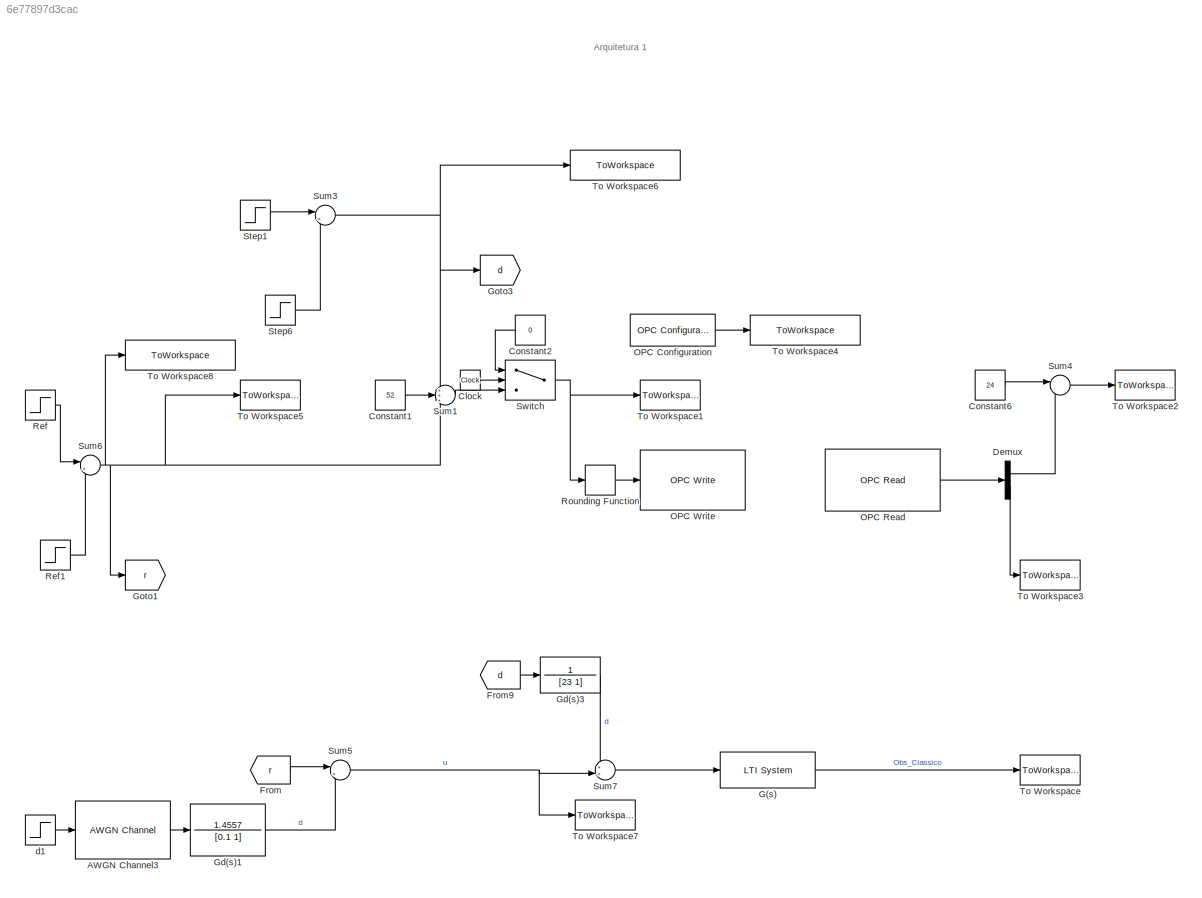
MODEL slx_6e77897d3cac
KIND model
BLOCK [Reference] AWGN Channel3  REF=commchan3/AWGN
Channel
  EbNodB = 10
  EsNodB = 10
  InputProcessing = Columns as channels (frame based)
  Ports = [1, 1]
  Ps = 1
  SNRdB = 10
  SourceBlock = commchan3/AWGN\nChannel
  SourceType = AWGN Channel
  Tsym = 1
  UserDataPersistent = on
  bitsPerSym = 1
  noiseMode = Variance from mask
  seed = 67
  variance = var_ruido
BLOCK [Clock] Clock
BLOCK [Constant] Constant1
  Value = 52
BLOCK [Constant] Constant2
  Value = 0
BLOCK [Constant] Constant6
  Value = 24
BLOCK [Demux] Demux
  DisplayOption = bar
  Outputs = 2
  Ports = [1, 2]
BLOCK [From] From
  GotoTag = r
BLOCK [From] From9
  GotoTag = d
BLOCK [Reference] G(s)  REF=cstblocks/LTI System
  IC = []
  Ports = [1, 1]
  SourceBlock = cstblocks/LTI System
  SourceType = LTI Block
  sys = Gs
BLOCK [TransferFcn] Gd(s)1
  Denominator = [0.1 1]
  Numerator = 1.4557
BLOCK [TransferFcn] Gd(s)3
  Denominator = [23 1]
  Numerator = 1
BLOCK [Goto] Goto1
  GotoTag = r
BLOCK [Goto] Goto3
  GotoTag = d
BLOCK [Reference] OPC Configuration  REF=opclib/OPC Configuration
  Ports = [0, 1]
  SourceBlock = opclib/OPC Configuration
  SourceType = OPC Configuration
  beingUsed = on
  errMissingItems = Error
  errRTViolation = Warn
  errReadWrite = Warn
  errShutdown = Error
  opcServers = 143.106.123.105/BR.OPC.Server_AR/10
  rtEnable = on
  showLatency = on
  speedup = 1
BLOCK [Reference] OPC Read  REF=opclib/OPC Read
  Ports = [0, 1]
  SourceBlock = opclib/OPC Read
  SourceType = OPC Read
  dataType = double
  itemIDs = PTQ4_corrigido, PTQ2_corrigido
  readMode = Synchronous (cache)
  serverHost = 143.106.123.105
  serverID = BR.OPC.Server_AR
  showQual = off
  showTS = off
  tsMode = Seconds since start
  updateRate = 5
BLOCK [Reference] OPC Write  REF=opclib/OPC Write
  Ports = [1]
  SourceBlock = opclib/OPC Write
  SourceType = OPC Write
  itemIDs = Bomba2
  serverHost = 143.106.123.105
  serverID = BR.OPC.Server_AR
  updateRate = -1
  writeMode = Synchronous
BLOCK [Step] Ref
  After = ref
  SampleTime = 0
  Time = Tref
BLOCK [Step] Ref1
  After = -ref
  SampleTime = 0
  Time = Trefdown
BLOCK [Rounding] Rounding Function
  Operator = round
BLOCK [Step] Step1
  After = dist
  SampleTime = 0
  Time = Tdist
BLOCK [Step] Step6
  After = -dist
  SampleTime = 0
  Time = Tdistdown
BLOCK [Sum] Sum1
  IconShape = round
  InputSameDT = off
  Inputs = +++
  OutDataTypeStr = Inherit: Inherit via internal rule
  Ports = [3, 1]
  SaturateOnIntegerOverflow = off
BLOCK [Sum] Sum3
  IconShape = round
  InputSameDT = off
  Inputs = |++
  OutDataTypeStr = Inherit: Inherit via internal rule
  Ports = [2, 1]
  SaturateOnIntegerOverflow = off
BLOCK [Sum] Sum4
  IconShape = round
  InputSameDT = off
  Inputs = |-+
  OutDataTypeStr = Inherit: Inherit via internal rule
  Ports = [2, 1]
  SaturateOnIntegerOverflow = off
BLOCK [Sum] Sum5
  IconShape = round
  InputSameDT = off
  Inputs = |+-
  OutDataTypeStr = Inherit: Inherit via internal rule
  Ports = [2, 1]
  SaturateOnIntegerOverflow = off
BLOCK [Sum] Sum6
  IconShape = round
  InputSameDT = off
  Inputs = |++
  OutDataTypeStr = Inherit: Inherit via internal rule
  Ports = [2, 1]
  SaturateOnIntegerOverflow = off
BLOCK [Sum] Sum7
  IconShape = round
  InputSameDT = off
  Inputs = ++|
  OutDataTypeStr = Inherit: Inherit via internal rule
  Ports = [2, 1]
  SaturateOnIntegerOverflow = off
BLOCK [Switch] Switch
  InputSameDT = off
  SaturateOnIntegerOverflow = off
  Threshold = Tsim-5
BLOCK [ToWorkspace] To Workspace
  FixptAsFi = on
  MaxDataPoints = inf
  Ports = [1]
  SampleTime = -1
  SaveFormat = Timeseries
  VariableName = Saida_Simulado
BLOCK [ToWorkspace] To Workspace1
  FixptAsFi = on
  MaxDataPoints = inf
  Ports = [1]
  SampleTime = Ts
  SaveFormat = Timeseries
  VariableName = sinalControle
BLOCK [ToWorkspace] To Workspace2
  FixptAsFi = on
  MaxDataPoints = inf
  Ports = [1]
  SampleTime = Ts
  SaveFormat = Timeseries
  VariableName = sinalSaida
BLOCK [ToWorkspace] To Workspace3
  FixptAsFi = on
  MaxDataPoints = inf
  Ports = [1]
  SampleTime = Ts
  SaveFormat = Timeseries
  VariableName = tanque2
BLOCK [ToWorkspace] To Workspace4
  FixptAsFi = on
  MaxDataPoints = inf
  Ports = [1]
  SampleTime = Ts
  SaveFormat = Timeseries
  VariableName = latency_sem_filtro
BLOCK [ToWorkspace] To Workspace5
  FixptAsFi = on
  MaxDataPoints = inf
  Ports = [1]
  SampleTime = Ts
  SaveFormat = Timeseries
  VariableName = sinalErro_sem_filtro
BLOCK [ToWorkspace] To Workspace6
  FixptAsFi = on
  MaxDataPoints = inf
  Ports = [1]
  SampleTime = Ts
  SaveFormat = Timeseries
  VariableName = sinalDisturbio
BLOCK [ToWorkspace] To Workspace7
  FixptAsFi = on
  MaxDataPoints = inf
  Ports = [1]
  SampleTime = -1
  SaveFormat = Timeseries
  VariableName = Controle_Simulado
BLOCK [ToWorkspace] To Workspace8
  FixptAsFi = on
  MaxDataPoints = inf
  Ports = [1]
  SampleTime = Ts
  SaveFormat = Timeseries
  VariableName = sinalRef
BLOCK [Step] d1
  After = 0
  SampleTime = Ts
  Time = 0
ANNOTATION (root): Arquitetura 1
LINE AWGN Channel3:1 -> Gd(s)1:1
LINE Clock:1 -> Switch:2
LINE Constant1:1 -> Sum1:2
LINE Constant2:1 -> Switch:1
LINE Constant6:1 -> Sum4:1
LINE Demux:1 -> Sum4:2
LINE Demux:2 -> To Workspace3:1
LINE From9:1 -> Gd(s)3:1
LINE From:1 -> Sum5:1
LINE G(s):1 -> To Workspace:1
LINE Gd(s)1:1 -> Sum5:2
LINE Gd(s)3:1 -> Sum7:1
LINE OPC Configuration:1 -> To Workspace4:1
LINE OPC Read:1 -> Demux:1
LINE Ref1:1 -> Sum6:2
LINE Ref:1 -> Sum6:1
LINE Rounding Function:1 -> OPC Write:1
LINE Step1:1 -> Sum3:1
LINE Step6:1 -> Sum3:2
LINE Sum1:1 -> Switch:3
NET Sum3:1 -> Goto3:1, Sum1:1, To Workspace6:1
LINE Sum4:1 -> To Workspace2:1
NET Sum5:1 -> Sum7:2, To Workspace7:1
NET Sum6:1 -> Goto1:1, Sum1:3, To Workspace5:1, To Workspace8:1
LINE Sum7:1 -> G(s):1
NET Switch:1 -> Rounding Function:1, To Workspace1:1
LINE d1:1 -> AWGN Channel3:1
note: NET lines group one-source signal fan-out (src -> all destinations, sorted); 1:1 wires keep LINE
